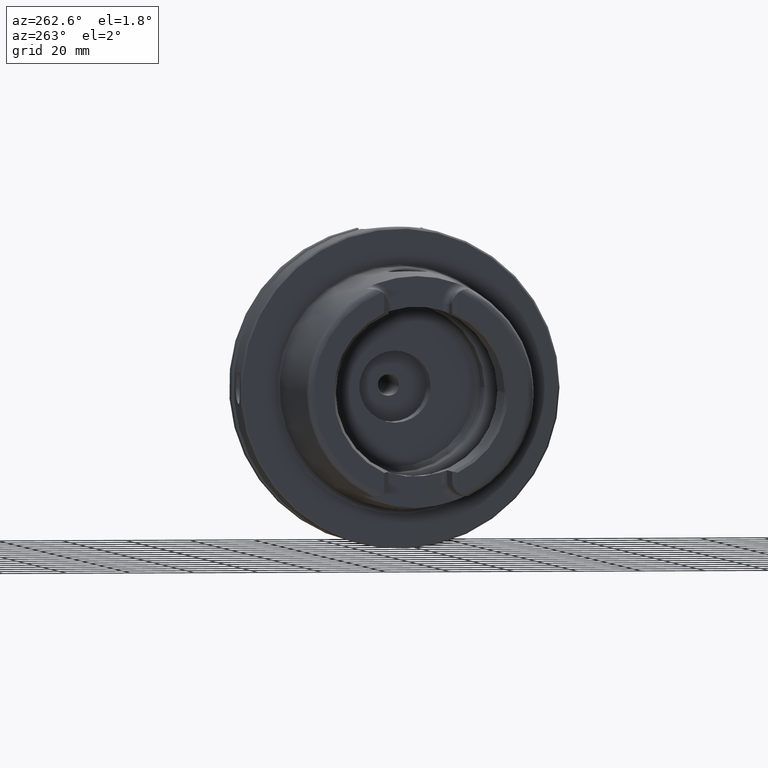
[diagram: clean part render]
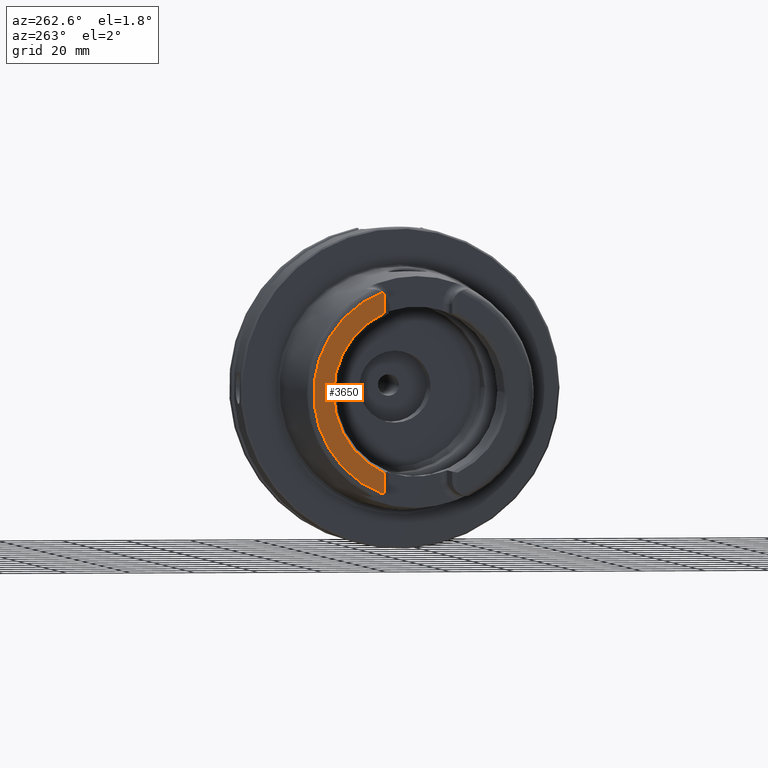
[diagram: same view with one face highlighted and labeled with its STEP entity id]
A machine part, auxiliary view. The second image highlights one B-rep face of the part: STEP entity #3650.
In plain terms, the highlighted planar face has unit normal (-1, 0, 0).
Its self-contained STEP definition (entity closure, byte-faithful):
#735=PLANE('',#4112);
#931=FACE_OUTER_BOUND('',#1125,.T.);
#1125=EDGE_LOOP('',(#3173,#3174,#3175,#3176,#3177,#3178));
#1250=LINE('',#5631,#1440);
#1262=LINE('',#5742,#1452);
#1440=VECTOR('',#4524,10.);
#1452=VECTOR('',#4584,10.);
#1623=CIRCLE('',#3954,4.88);
#1634=CIRCLE('',#3979,4.88);
#1698=CIRCLE('',#4104,27.3660254037844);
#1699=CIRCLE('',#4108,33.6001839277785);
#1866=VERTEX_POINT('',#5624);
#1869=VERTEX_POINT('',#5629);
#1872=VERTEX_POINT('',#5639);
#1893=VERTEX_POINT('',#5739);
#1894=VERTEX_POINT('',#5741);
#1899=VERTEX_POINT('',#5760);
#2197=EDGE_CURVE('',#1869,#1866,#1250,.T.);
#2201=EDGE_CURVE('',#1872,#1866,#1623,.T.);
#2228=EDGE_CURVE('',#1893,#1894,#1262,.T.);
#2235=EDGE_CURVE('',#1893,#1899,#1634,.T.);
#2423=EDGE_CURVE('',#1894,#1869,#1698,.T.);
#2425=EDGE_CURVE('',#1872,#1899,#1699,.T.);
#3173=ORIENTED_EDGE('',*,*,#2197,.F.);
#3174=ORIENTED_EDGE('',*,*,#2423,.F.);
#3175=ORIENTED_EDGE('',*,*,#2228,.F.);
#3176=ORIENTED_EDGE('',*,*,#2235,.T.);
#3177=ORIENTED_EDGE('',*,*,#2425,.F.);
#3178=ORIENTED_EDGE('',*,*,#2201,.T.);
#3650=ADVANCED_FACE('',(#931),#735,.T.);
#3954=AXIS2_PLACEMENT_3D('',#5640,#4532,#4533);
#3979=AXIS2_PLACEMENT_3D('',#5773,#4593,#4594);
#4104=AXIS2_PLACEMENT_3D('',#6956,#4905,#4906);
#4108=AXIS2_PLACEMENT_3D('',#6961,#4914,#4915);
#4112=AXIS2_PLACEMENT_3D('',#6968,#4923,#4924);
#4524=DIRECTION('',(0.,0.,-1.));
#4532=DIRECTION('center_axis',(-1.,0.,0.));
#4533=DIRECTION('ref_axis',(0.,-0.477884921181368,0.878422450821629));
#4584=DIRECTION('',(0.,0.,-1.));
#4593=DIRECTION('center_axis',(-1.,0.,0.));
#4594=DIRECTION('ref_axis',(0.,1.,0.));
#4905=DIRECTION('center_axis',(-1.,0.,0.));
#4906=DIRECTION('ref_axis',(0.,-1.,0.));
#4914=DIRECTION('center_axis',(1.,0.,0.));
#4915=DIRECTION('ref_axis',(0.,0.,-1.));
#4923=DIRECTION('center_axis',(-1.,0.,0.));
#4924=DIRECTION('ref_axis',(0.,0.,1.));
#5624=CARTESIAN_POINT('',(-50.,11.51,-30.8899431813596));
#5629=CARTESIAN_POINT('',(-50.,11.51,-24.8277918148307));
#5631=CARTESIAN_POINT('',(-50.,11.51,-10.));
#5639=CARTESIAN_POINT('',(-50.,12.0743049948301,-31.355757348091));
#5640=CARTESIAN_POINT('Origin',(-50.,14.89,-27.37));
#5739=CARTESIAN_POINT('',(-50.,11.51,30.8899431813596));
#5741=CARTESIAN_POINT('',(-50.,11.51,24.8277918148307));
#5742=CARTESIAN_POINT('',(-50.,11.51,13.685));
#5760=CARTESIAN_POINT('',(-50.,12.0743049948301,31.355757348091));
#5773=CARTESIAN_POINT('Origin',(-50.,14.89,27.37));
#6956=CARTESIAN_POINT('Origin',(-50.,0.,0.));
#6961=CARTESIAN_POINT('Origin',(-50.,0.,0.));
#6968=CARTESIAN_POINT('Origin',(-50.,33.6001839277785,0.));